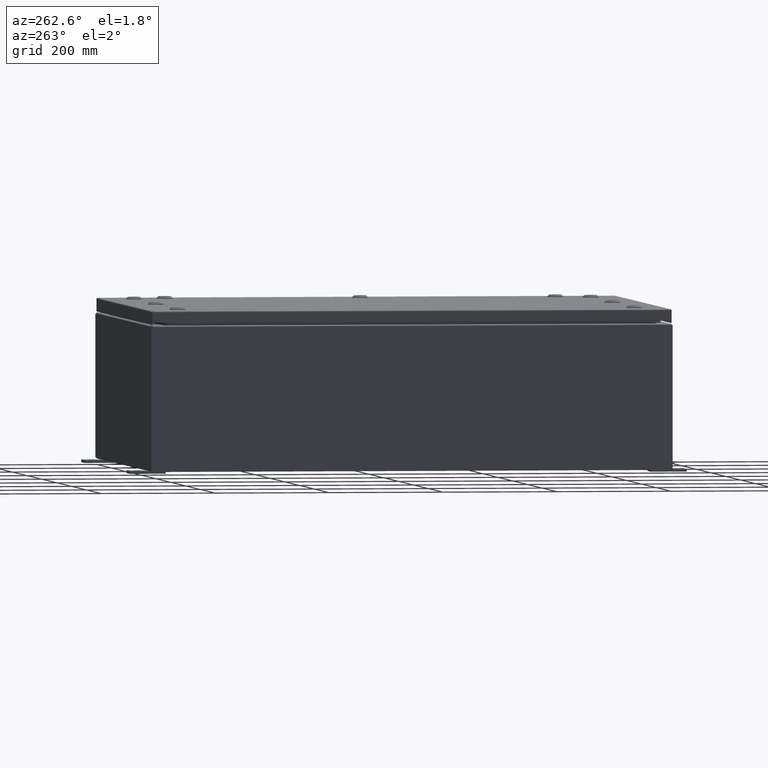
[diagram: clean part render]
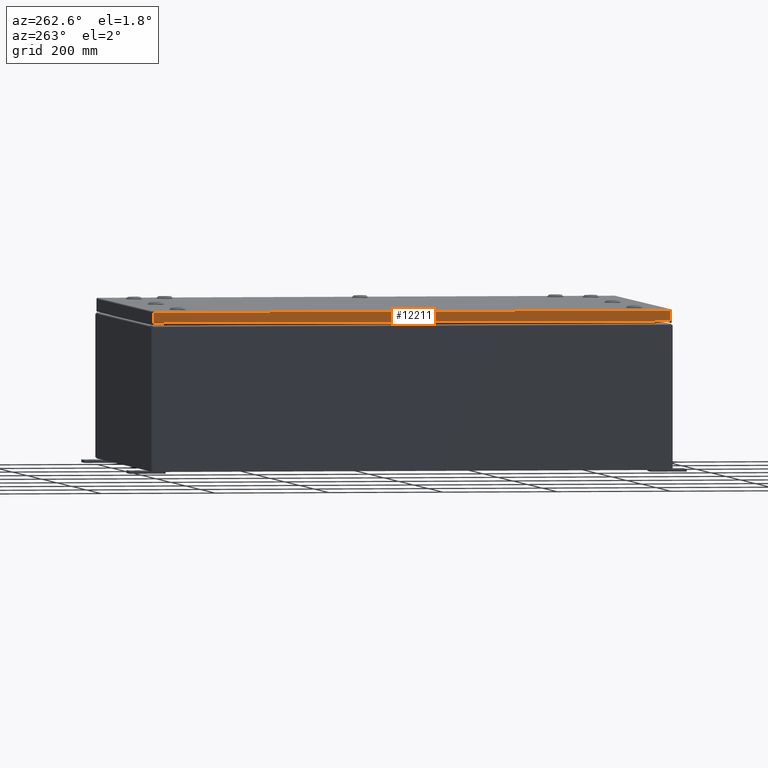
[diagram: same view with one face highlighted and labeled with its STEP entity id]
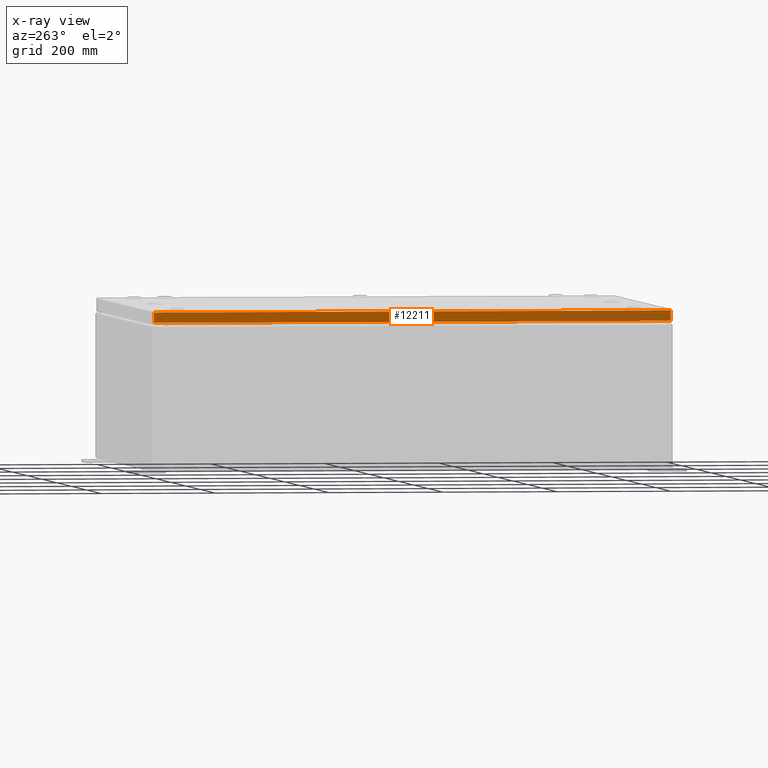
[diagram: x-ray of the same camera — body ghosted, the highlighted face saturated]
A machine part, auxiliary view. The second image highlights one B-rep face of the part: STEP entity #12211.
The next image is the same camera in x-ray: the body ghosted, the highlighted face saturated — about 0% of this face is hidden behind the body in this view.
In plain terms, the highlighted planar face has unit normal (1, 0, -0).
Its self-contained STEP definition (entity closure, byte-faithful):
#2501 = EDGE_CURVE ( 'NONE', #54467, #36970, #44015, .T. ) ;
#3865 = LINE ( 'NONE', #35084, #56332 ) ;
#3928 = CARTESIAN_POINT ( 'NONE',  ( -14.93750000000000200, 17.84865786437626800, 1.702195293462633700E-013 ) ) ;
#4885 = CARTESIAN_POINT ( 'NONE',  ( -14.93750000000000400, 17.84865786437627500, -0.7949999999999954900 ) ) ;
#5994 = EDGE_CURVE ( 'NONE', #43491, #54467, #50123, .T. ) ;
#6263 = CARTESIAN_POINT ( 'NONE',  ( -14.93750000000000200, -17.84865786437626800, -0.08770000000000007000 ) ) ;
#7139 = AXIS2_PLACEMENT_3D ( 'NONE', #50072, #65269, #34964 ) ;
#12211 = ADVANCED_FACE ( 'NONE', ( #27563 ), #29642, .F. ) ;
#19905 = ORIENTED_EDGE ( 'NONE', *, *, #54656, .T. ) ;
#20175 = VECTOR ( 'NONE', #44689, 39.37007874015748100 ) ;
#22021 = VERTEX_POINT ( 'NONE', #4885 ) ;
#23117 = VECTOR ( 'NONE', #55194, 39.37007874015748100 ) ;
#27563 = FACE_OUTER_BOUND ( 'NONE', #63758, .T. ) ;
#28911 = VECTOR ( 'NONE', #36439, 39.37007874015748100 ) ;
#29012 = ORIENTED_EDGE ( 'NONE', *, *, #2501, .F. ) ;
#29641 = EDGE_CURVE ( 'NONE', #36970, #22021, #3865, .T. ) ;
#29642 = PLANE ( 'NONE',  #7139 ) ;
#33998 = CARTESIAN_POINT ( 'NONE',  ( -14.93750000000000200, -17.93750000000000000, -0.08770000000000004200 ) ) ;
#34872 = CARTESIAN_POINT ( 'NONE',  ( -14.93750000000000200, 17.84865786437626800, -0.08770000000000004200 ) ) ;
#34964 = DIRECTION ( 'NONE',  ( -3.034122441942816500E-015, 0.0000000000000000000, -1.000000000000000000 ) ) ;
#35084 = CARTESIAN_POINT ( 'NONE',  ( -14.93750000000000400, -17.93750000000000000, -0.7949999999999997100 ) ) ;
#36439 = DIRECTION ( 'NONE',  ( -3.034122441942816500E-015, 6.982962677686267500E-015, -1.000000000000000000 ) ) ;
#36970 = VERTEX_POINT ( 'NONE', #42898 ) ;
#41284 = ORIENTED_EDGE ( 'NONE', *, *, #5994, .F. ) ;
#42898 = CARTESIAN_POINT ( 'NONE',  ( -14.93750000000000400, -17.84865786437626800, -0.7949999999999996000 ) ) ;
#43491 = VERTEX_POINT ( 'NONE', #34872 ) ;
#44015 = LINE ( 'NONE', #50653, #28911 ) ;
#44689 = DIRECTION ( 'NONE',  ( -3.034122441942816500E-015, 6.982962677686267500E-015, -1.000000000000000000 ) ) ;
#50072 = CARTESIAN_POINT ( 'NONE',  ( -14.93750000000000200, -5.521990110180389400E-030, 4.558301763253240900E-014 ) ) ;
#50123 = LINE ( 'NONE', #33998, #23117 ) ;
#50653 = CARTESIAN_POINT ( 'NONE',  ( -14.93750000000000200, -17.84865786437627100, -0.07469999999999976700 ) ) ;
#54467 = VERTEX_POINT ( 'NONE', #6263 ) ;
#54656 = EDGE_CURVE ( 'NONE', #43491, #22021, #62237, .T. ) ;
#55194 = DIRECTION ( 'NONE',  ( 3.696729780873900900E-031, -1.000000000000000000, -1.089726516288665400E-045 ) ) ;
#56332 = VECTOR ( 'NONE', #65375, 39.37007874015748100 ) ;
#58044 = ORIENTED_EDGE ( 'NONE', *, *, #29641, .F. ) ;
#62237 = LINE ( 'NONE', #3928, #20175 ) ;
#63758 = EDGE_LOOP ( 'NONE', ( #41284, #19905, #58044, #29012 ) ) ;
#65269 = DIRECTION ( 'NONE',  ( 1.000000000000000000, 3.696729780873900900E-031, -3.034122441942816500E-015 ) ) ;
#65375 = DIRECTION ( 'NONE',  ( -4.379057701015054300E-047, 1.000000000000000000, 1.218385167906012900E-016 ) ) ;